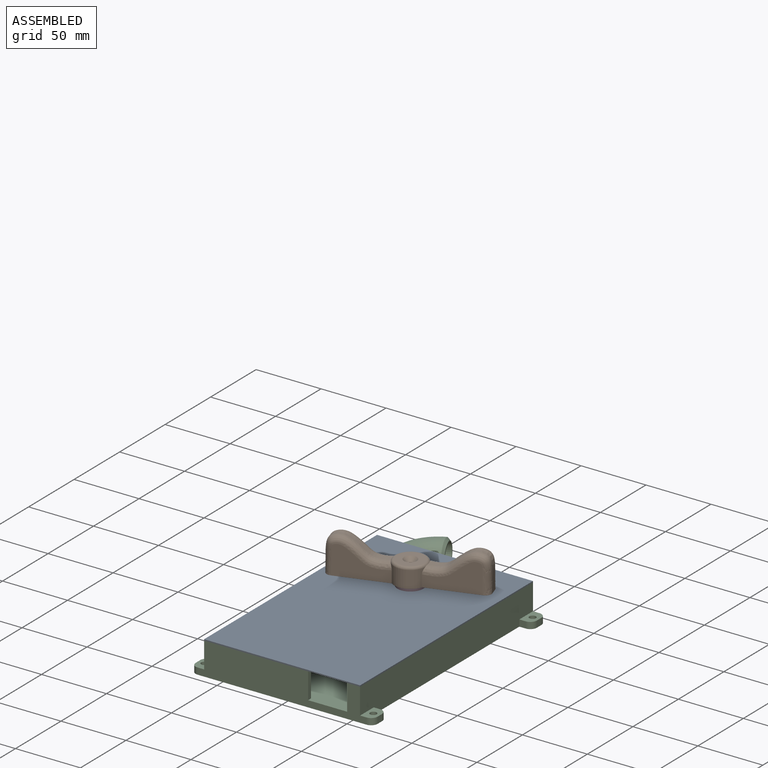
[diagram: assembled view]
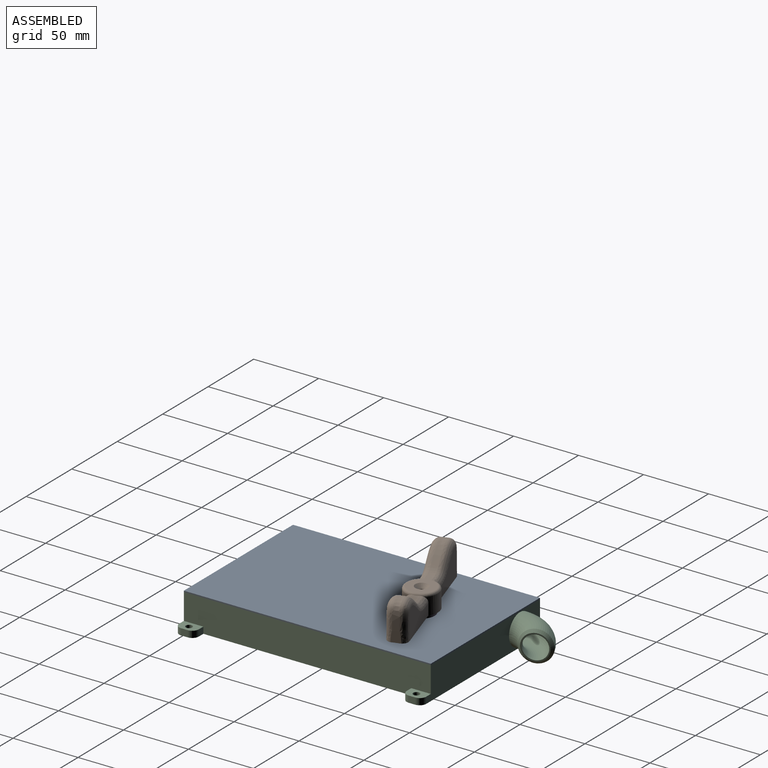
[diagram: assembled view, second angle]
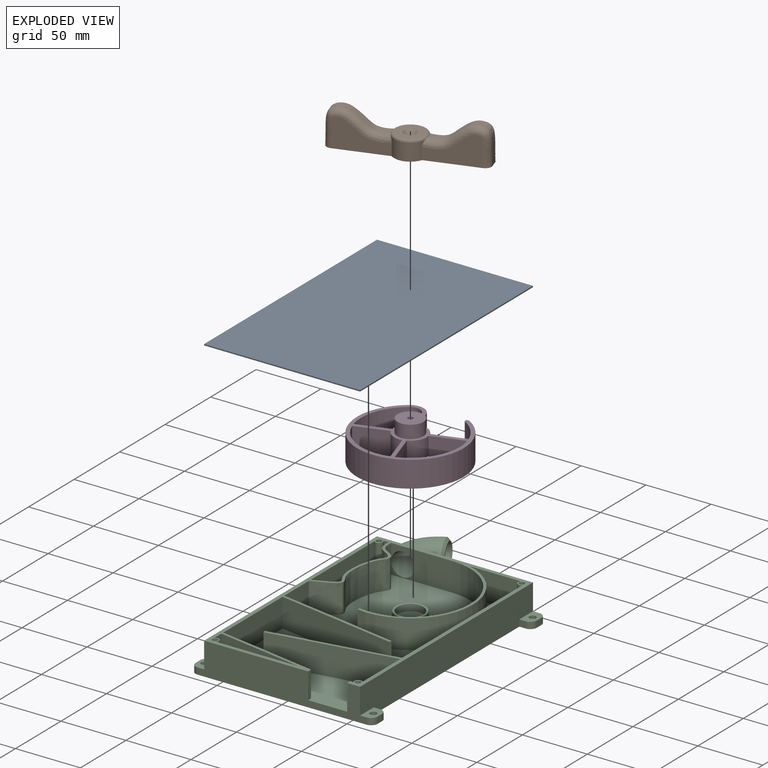
[diagram: exploded view]
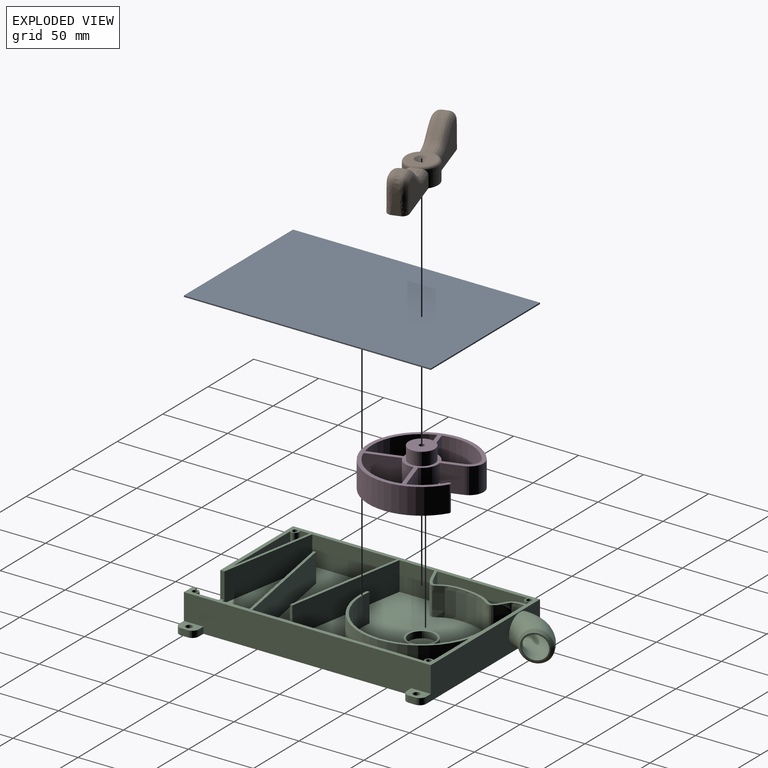
[diagram: exploded view, second angle]
ASSEMBLY  parts=4 mates=3
PART A: 6 faces, bbox 120x190x1 mm
  f0: plane 190x1mm, normal (-1,0,0), area 190mm2, adj f1,f3,f4,f5
  f1: plane 120x1mm, normal (0,-1,0), area 120mm2, adj f0,f2,f4,f5
  f2: plane 190x1mm, normal (1,0,0), area 190mm2, adj f1,f3,f4,f5
  f3: plane 120x1mm, normal (0,1,0), area 120mm2, adj f0,f2,f4,f5
  f4: plane 190x120mm, normal (0,0,1), area 22800mm2, adj f0,f1,f2,f3
  f5: plane 190x120mm, normal (0,0,-1), area 22800mm2, adj f0,f1,f2,f3
PART B: 23 faces, bbox 110.8x27.1x40.8 mm
  f0: cylinder r=12.5mm len=22.47mm, axis (0,0,-1), area 310.6mm2, adj f6,f7,f11,f14,f17,f20
  f1: plane 21x21mm, normal (0,0,-1), area 333.8mm2, adj f2,f5
  f2: cylinder r=2mm len=7mm, axis (0,0,-1), area 88mm2, adj f1,f13
  f3: cylinder r=12.5mm len=22.47mm, axis (0,0,-1), area 310.6mm2, adj f6,f8,f10,f14,f18,f21
  f4: plane 21x21mm, normal (0,0,1), area 267.8mm2, adj f13,f14
  f5: cylinder r=10.5mm len=21mm, axis (0,0,1), area 329.9mm2, adj f1,f6
  f6: plane 110x25mm, normal (0,0,-1), area 1424.4mm2, adj f0,f3,f5,f7,f8,f10,f11,f15
  f7: plane 40.15x22.44mm, normal (0,1,0), area 572.2mm2, adj f0,f6,f17
  f8: plane 40.15x22.44mm, normal (0,-1,0), area 572.2mm2, adj f3,f6,f18
  f9: extruded ~42.98x19.39mm, area 313.5mm2, adj f14,f17,f18,f19
  f10: plane 40.15x22.44mm, normal (0,-1,0), area 571.1mm2, adj f3,f6,f21
  f11: plane 40.15x22.44mm, normal (0,1,0), area 571.1mm2, adj f0,f6,f20
  f12: extruded ~42.98x19.39mm, area 312.9mm2, adj f14,f20,f21,f22
  f13: cone r=2mm half-angle=45deg, axis (0,0,1), area 93.3mm2, adj f2,f4
  f14: torus R=10.5mm, axis (0,0,1), area 214.8mm2, adj f0,f3,f4,f9,f12,f17,f18,f20
  f15: plane 7.95x7.42mm, normal (-1,0,0), area 52.7mm2, adj f6,f17,f18,f19
  f16: plane 7.95x7.42mm, normal (1,0,0), area 52.7mm2, adj f6,f20,f21,f22
  f17: bspline ~47.25x40.83mm, area 526.2mm2, adj f0,f6,f7,f9,f14,f15,f19
  f18: bspline ~47.25x40.83mm, area 526.2mm2, adj f3,f6,f8,f9,f14,f15,f19
  f19: cylinder r=5mm len=5.18mm, axis (0,-1,0), area 0.5mm2, adj f9,f15,f17,f18
  f20: bspline ~47.25x40.83mm, area 526.2mm2, adj f0,f6,f11,f12,f14,f16,f22
  f21: bspline ~47.25x40.83mm, area 526.2mm2, adj f3,f6,f10,f12,f14,f16,f22
  f22: cylinder r=5mm len=5.18mm, axis (0,-1,0), area 0.5mm2, adj f12,f16,f20,f21
PART C: 81 faces, bbox 140x226.8x25 mm
  f0: plane 78.55x22mm, normal (0.17,0.98,0), area 1723.3mm2, adj f9,f10,f37,f38,f78,f79
  f1: plane 190x25mm, normal (-1,0,0), area 4600mm2, adj f3,f4,f5,f37,f55,f60,f68,f72
  f2: plane 190x25mm, normal (1,0,0), area 4600mm2, adj f3,f4,f5,f37,f50,f54,f61,f66
  f3: plane 130x25mm, normal (0,-1,0), area 2450mm2, adj f1,f2,f5,f37,f64,f66,f69,f72
  f4: plane 130x25mm, normal (0,1,0), area 2597.6mm2, adj f1,f2,f5,f37,f51,f54,f58,f60
  f5: plane 190x140mm, normal (0,0,-1), area 23278.5mm2, adj f1,f2,f3,f4,f49,f50,f51,f52
  f6: plane 67.03x22mm, normal (-0.17,-0.98,0), area 1497.5mm2, adj f7,f32,f37,f39
  f7: plane 62.8x22mm, normal (0,1,0), area 1381.5mm2, adj f6,f8,f37,f39
  f8: cylinder r=3mm len=22mm, axis (0,0,-1), area 200mm2, adj f7,f32,f37,f39
  f9: plane 31.21x22mm, normal (0,1,0), area 117.7mm2, adj f0,f33,f37,f38,f79,f80
  f10: plane 65.12x22mm, normal (1,0,0), area 1432.6mm2, adj f0,f11,f37,f38
  f11: plane 93.65x22mm, normal (-0.17,-0.98,0), area 2092.1mm2, adj f10,f12,f37,f38
  f12: plane 22x1.97mm, normal (0.98,-0.17,0), area 44mm2, adj f11,f13,f37,f38
  f13: plane 94x22mm, normal (0.17,0.98,0), area 2099.9mm2, adj f12,f14,f37,f38
  f14: plane 26.87x22mm, normal (1,0,0), area 591.1mm2, adj f13,f15,f37,f38
  f15: extruded ~76.13x22mm, area 2099.9mm2, adj f14,f16,f37,f38
  f16: plane 47.07x22mm, normal (0,-1,0), area 781.1mm2, adj f15,f17,f37,f38,f76
  f17: cylinder r=46mm len=92mm, axis (0,0,-1), area 3345mm2, adj f16,f18,f37,f38
  f18: plane 22x2.03mm, normal (-1,0,0), area 44.6mm2, adj f17,f19,f37,f38
  f19: cylinder r=48mm len=94mm, axis (0,0,-1), area 3177.3mm2, adj f18,f20,f37,f38
  f20: plane 39.05x22mm, normal (0,-1,0), area 859.2mm2, adj f19,f21,f37,f38
  f21: cylinder r=3mm len=22mm, axis (0,0,-1), area 200mm2, adj f20,f22,f37,f38
  f22: plane 132.34x22mm, normal (-1,0,0), area 2911.5mm2, adj f21,f23,f37,f38
  f23: plane 94x22mm, normal (-0.17,0.98,0), area 2099.9mm2, adj f22,f24,f37,f38
  f24: plane 22x1.97mm, normal (-0.98,-0.17,0), area 44mm2, adj f23,f25,f37,f38
  f25: plane 93.65x22mm, normal (0.17,-0.98,0), area 2092.1mm2, adj f24,f26,f37,f38
  f26: plane 41.16x22mm, normal (-1,0,0), area 905.5mm2, adj f25,f33,f37,f38
  f27: cylinder r=3mm len=22mm, axis (0,0,-1), area 200mm2, adj f28,f35,f37,f44
  f28: plane 22x3.69mm, normal (0,-1,0), area 81.2mm2, adj f27,f29,f37,f44
  f29: extruded ~73.98x22mm, area 2004.1mm2, adj f28,f35,f37,f44
  f30: cylinder r=2mm len=22mm, axis (0,0,-1), area 276.5mm2, adj f37,f41
  f31: cylinder r=2mm len=22mm, axis (0,0,-1), area 276.5mm2, adj f37,f42
  f32: plane 22x7.58mm, normal (1,0,0), area 166.8mm2, adj f6,f8,f37,f39
  f33: cylinder r=3mm len=22mm, axis (0,0,-1), area 200mm2, adj f9,f26,f37,f38
  f34: cylinder r=2mm len=22mm, axis (0,0,-1), area 276.5mm2, adj f37,f43
  f35: plane 69.75x22mm, normal (1,0,0), area 1534.5mm2, adj f27,f29,f37,f44
  f36: cylinder r=2mm len=22mm, axis (0,0,-1), area 276.5mm2, adj f37,f40
  f37: plane 190x120mm, normal (0,0,1), area 2780.1mm2, adj f0,f1,f2,f3,f4,f6,f7,f8
  f38: plane 184x114mm, normal (0,0,1), area 18160.7mm2, adj f0,f9,f10,f11,f12,f13,f14,f15
  f39: plane 67.03x11.82mm, normal (0,0,1), area 374mm2, adj f6,f7,f8,f32
  f40: plane 4x4mm, normal (0,0,1), area 12.6mm2, adj f36
  f41: plane 4x4mm, normal (0,0,1), area 12.6mm2, adj f30
  f42: plane 4x4mm, normal (0,0,1), area 12.6mm2, adj f31
  f43: plane 4x4mm, normal (0,0,1), area 12.6mm2, adj f34
  f44: plane 74x20.05mm, normal (0,0,1), area 929mm2, adj f27,f28,f29,f35
  f45: cylinder r=10mm len=20mm, axis (0,0,-1), area 314.2mm2, adj f47,f48
  f46: cylinder r=11.5mm len=23mm, axis (0,0,-1), area 361.3mm2, adj f38,f47
  f47: plane 23x23mm, normal (0,0,1), area 101.3mm2, adj f45,f46
  f48: plane 20x20mm, normal (0,0,1), area 314.2mm2, adj f45
  f49: cylinder r=5mm len=5mm, axis (0,0,-1), area 39.3mm2, adj f5,f50,f53,f54
  f50: plane 5x5mm, normal (0,-1,0), area 25mm2, adj f2,f5,f49,f54
  f51: cylinder r=5mm len=5mm, axis (0,0,-1), area 39.3mm2, adj f4,f5,f53,f54
  f52: cylinder r=2.5mm len=5mm, axis (0,0,-1), area 78.5mm2, adj f5,f54
  f53: plane 5x5mm, normal (1,0,0), area 25mm2, adj f5,f49,f51,f54
  f54: plane 15x10mm, normal (0,0,1), area 119.6mm2, adj f2,f4,f49,f50,f51,f52,f53
  f55: plane 5x5mm, normal (0,-1,0), area 25mm2, adj f1,f5,f56,f60
  f56: cylinder r=5mm len=5mm, axis (0,0,-1), area 39.3mm2, adj f5,f55,f57,f60
  f57: plane 5x5mm, normal (-1,0,0), area 25mm2, adj f5,f56,f58,f60
  f58: cylinder r=5mm len=5mm, axis (0,0,-1), area 39.3mm2, adj f4,f5,f57,f60
  f59: cylinder r=2.5mm len=5mm, axis (0,0,-1), area 78.5mm2, adj f5,f60
  f60: plane 15x10mm, normal (0,0,1), area 119.6mm2, adj f1,f4,f55,f56,f57,f58,f59
  f61: plane 5x5mm, normal (0,1,0), area 25mm2, adj f2,f5,f62,f66
  f62: cylinder r=5mm len=5mm, axis (0,0,-1), area 39.3mm2, adj f5,f61,f63,f66
  f63: plane 5x5mm, normal (1,0,0), area 25mm2, adj f5,f62,f64,f66
  f64: cylinder r=5mm len=5mm, axis (0,0,-1), area 39.3mm2, adj f3,f5,f63,f66
  f65: cylinder r=2.5mm len=5mm, axis (0,0,-1), area 78.5mm2, adj f5,f66
  f66: plane 15x10mm, normal (0,0,1), area 119.6mm2, adj f2,f3,f61,f62,f63,f64,f65
  f67: cylinder r=5mm len=5mm, axis (0,0,-1), area 39.3mm2, adj f5,f68,f71,f72
  f68: plane 5x5mm, normal (0,1,0), area 25mm2, adj f1,f5,f67,f72
  f69: cylinder r=5mm len=5mm, axis (0,0,-1), area 39.3mm2, adj f3,f5,f71,f72
  f70: cylinder r=2.5mm len=5mm, axis (0,0,-1), area 78.5mm2, adj f5,f72
  f71: plane 5x5mm, normal (-1,0,0), area 25mm2, adj f5,f67,f69,f72
  f72: plane 15x10mm, normal (0,0,1), area 119.6mm2, adj f1,f3,f67,f68,f69,f70,f71
  f73: torus R=25mm, axis (0,0,1), area 1727.2mm2, adj f75,f76
  f74: torus R=25mm, axis (0,0,1), area 2195.1mm2, adj f4,f77
  f75: plane 20.03x18.9mm, normal (0.94,0.34,0), area 60.8mm2, adj f73,f77
  f76: cylinder r=9mm len=18mm, axis (0,1,0), area 169.6mm2, adj f16,f73
  f77: bspline ~24x22.48mm, area 193.8mm2, adj f74,f75
  f78: plane 20x3.27mm, normal (1,0,0), area 65.5mm2, adj f0,f3,f37,f79
  f79: plane 30x3.27mm, normal (0,0,1), area 90.2mm2, adj f0,f3,f9,f78,f80
  f80: plane 20x3mm, normal (-1,0,0), area 60mm2, adj f3,f9,f37,f79
PART D: 34 faces, bbox 82x80.5x30 mm
  f0: cylinder r=9mm len=18mm, axis (0,0,-1), area 339.3mm2, adj f1,f26
  f1: plane 18x18mm, normal (0,0,-1), area 254.5mm2, adj f0
  f2: cylinder r=12.5mm len=6mm, axis (0,0,-1), area 18mm2, adj f6,f20,f21,f26
  f3: cylinder r=12.5mm len=6mm, axis (0,0,-1), area 18mm2, adj f9,f10,f21,f26
  f4: cylinder r=12.5mm len=6mm, axis (0,0,-1), area 18mm2, adj f14,f15,f21,f26
  f5: cylinder r=12.5mm len=6mm, axis (0,0,-1), area 18mm2, adj f17,f18,f21,f26
  f6: plane 25.56x20mm, normal (0,1,0), area 511.2mm2, adj f2,f7,f21,f23,f27
  f7: cylinder r=38mm len=34.54mm, axis (0,0,-1), area 918.9mm2, adj f6,f8,f21,f27
  f8: cylinder r=8mm len=20mm, axis (0,0,-1), area 302.9mm2, adj f7,f9,f21,f27
  f9: plane 20x16.05mm, normal (-1,0,0), area 320.9mm2, adj f3,f8,f21,f23,f27
  f10: plane 20x16.05mm, normal (1,0,0), area 320.9mm2, adj f3,f11,f21,f24,f27
  f11: cylinder r=11mm len=20mm, axis (0,0,-1), area 416.5mm2, adj f10,f12,f21,f27
  f12: cylinder r=41mm len=82mm, axis (0,0,-1), area 4201.9mm2, adj f11,f21,f27,f33
  f13: cylinder r=38mm len=23.99mm, axis (0,0,-1), area 528.9mm2, adj f14,f21,f27,f32
  f14: plane 25.56x20mm, normal (0,1,0), area 511.2mm2, adj f4,f13,f21,f24,f27
  f15: plane 25.56x20mm, normal (0,-1,0), area 511.2mm2, adj f4,f16,f21,f25,f27
  f16: cylinder r=38mm len=36.47mm, axis (0,0,-1), area 1133.8mm2, adj f15,f17,f21,f27
  f17: plane 25.56x20mm, normal (1,0,0), area 511.2mm2, adj f5,f16,f21,f25,f27
  f18: plane 25.56x20mm, normal (-1,0,0), area 511.2mm2, adj f5,f19,f21,f22,f27
  f19: cylinder r=38mm len=36.47mm, axis (0,0,-1), area 1133.8mm2, adj f18,f20,f21,f27
  f20: plane 25.56x20mm, normal (0,-1,0), area 511.2mm2, adj f2,f19,f21,f22,f27
  f21: plane 82x80.46mm, normal (0,0,-1), area 943.2mm2, adj f2,f3,f4,f5,f6,f7,f8,f9
  f22: cylinder r=12.5mm len=14mm, axis (0,0,-1), area 232.8mm2, adj f18,f20,f26,f27
  f23: cylinder r=12.5mm len=14mm, axis (0,0,-1), area 232.8mm2, adj f6,f9,f26,f27
  f24: cylinder r=12.5mm len=14mm, axis (0,0,-1), area 232.8mm2, adj f10,f14,f26,f27
  f25: cylinder r=12.5mm len=14mm, axis (0,0,-1), area 232.8mm2, adj f15,f17,f26,f27
  f26: plane 25x25mm, normal (0,0,-1), area 236.4mm2, adj f0,f2,f3,f4,f5,f22,f23,f24
  f27: plane 82x80.46mm, normal (0,0,1), area 1119.9mm2, adj f6,f7,f8,f9,f10,f11,f12,f13
  f28: cylinder r=10mm len=20mm, axis (0,0,-1), area 628.3mm2, adj f27,f29
  f29: plane 20x20mm, normal (0,0,1), area 301.6mm2, adj f28,f30
  f30: cylinder r=2mm len=25mm, axis (0,0,1), area 314.2mm2, adj f29,f31
  f31: plane 4x4mm, normal (0,0,1), area 12.6mm2, adj f30
  f32: cylinder r=2mm len=20mm, axis (0,0,-1), area 50.7mm2, adj f13,f21,f27,f33
  f33: cylinder r=2mm len=20mm, axis (0,0,-1), area 54.8mm2, adj f12,f21,f27,f32
PLACE A t=(-49.17,-6.01,1.36)mm
PLACE B rot(axis=(0,0,1),17.8deg) t=(-35.13,-3.81,2.36)mm
PLACE C t=(-49.17,-6.01,1.36)mm fixed
PLACE D rot(axis=(0,0,1),17.8deg) t=(-35.13,-3.81,2.36)mm
MATE fastened D.f0 <-> B.f0  axis (0,0,1) through (-49.17,39.99,32.36)mm
MATE fastened A.f5 <-> C.f37  axis (0,0,-1) through (-109.17,88.99,23.36)mm
MATE revolute D.f0 <-> C.f17  axis (0,0,-1) through (-49.17,39.99,2.36)mm
